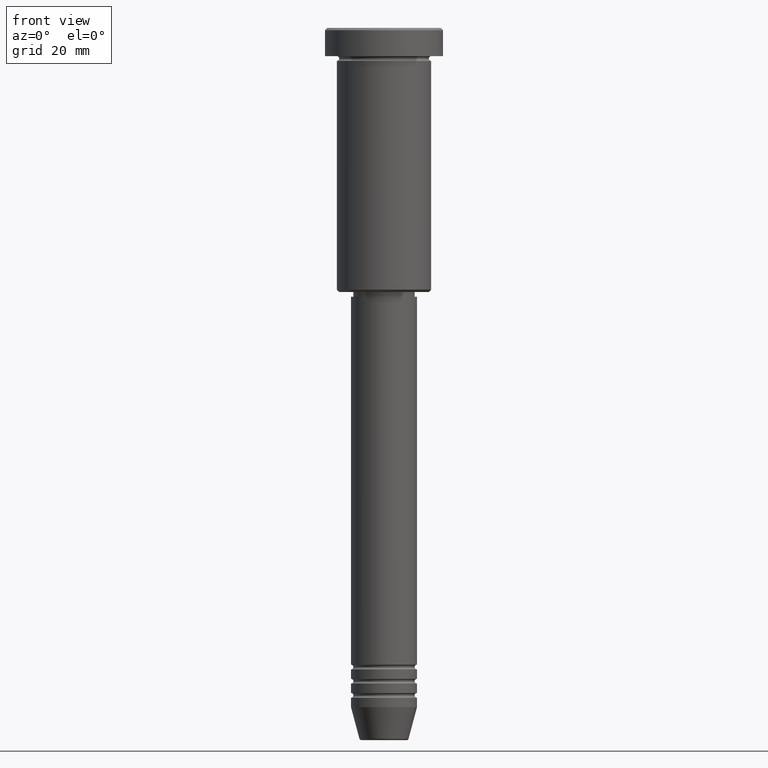
[diagram: clean part render]
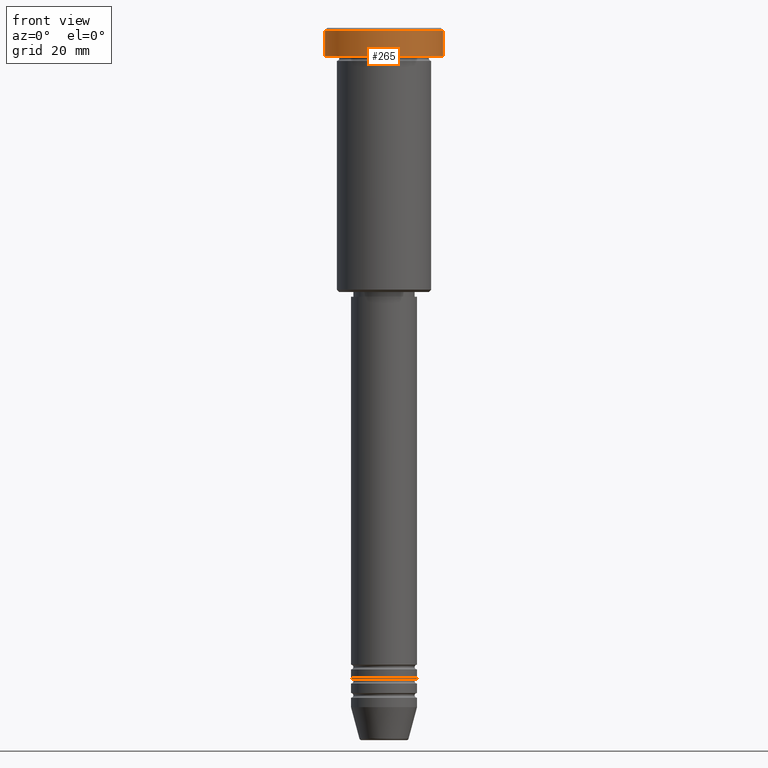
[diagram: same view with one face highlighted and labeled with its STEP entity id]
A machine part, front view. The second image highlights one B-rep face of the part: STEP entity #265.
In plain terms, the highlighted cylindrical surface (partial cylindrical patch) has radius 12.5 mm, axis along (-0, -0, 1).
Its self-contained STEP definition (entity closure, byte-faithful):
#18 = VERTEX_POINT ( 'NONE', #773 ) ;
#21 = ORIENTED_EDGE ( 'NONE', *, *, #83, .T. ) ;
#24 = EDGE_CURVE ( 'NONE', #554, #18, #480, .T. ) ;
#55 = DIRECTION ( 'NONE',  ( 0.000000000000000000, 0.000000000000000000, -1.000000000000000000 ) ) ;
#83 = EDGE_CURVE ( 'NONE', #693, #544, #987, .T. ) ;
#126 = EDGE_CURVE ( 'NONE', #544, #554, #431, .T. ) ;
#137 = DIRECTION ( 'NONE',  ( 1.000000000000000000, 0.000000000000000000, 0.000000000000000000 ) ) ;
#179 = VECTOR ( 'NONE', #239, 1000.000000000000000 ) ;
#193 = FACE_OUTER_BOUND ( 'NONE', #874, .T. ) ;
#239 = DIRECTION ( 'NONE',  ( -0.000000000000000000, -0.000000000000000000, 1.000000000000000000 ) ) ;
#255 = CARTESIAN_POINT ( 'NONE',  ( -12.50000000000000000, 1.530808498934191521E-15, 0.000000000000000000 ) ) ;
#265 = ADVANCED_FACE ( 'NONE', ( #193 ), #900, .T. ) ;
#282 = DIRECTION ( 'NONE',  ( 1.000000000000000000, 0.000000000000000000, 0.000000000000000000 ) ) ;
#289 = DIRECTION ( 'NONE',  ( -0.000000000000000000, -0.000000000000000000, 1.000000000000000000 ) ) ;
#366 = CARTESIAN_POINT ( 'NONE',  ( 12.50000000000000000, 0.000000000000000000, -0.5000000000000056621 ) ) ;
#424 = ORIENTED_EDGE ( 'NONE', *, *, #24, .T. ) ;
#431 = LINE ( 'NONE', #966, #179 ) ;
#480 = CIRCLE ( 'NONE', #1024, 12.50000000000000000 ) ;
#491 = CARTESIAN_POINT ( 'NONE',  ( 0.000000000000000000, 0.000000000000000000, -0.5000000000000056621 ) ) ;
#500 = CARTESIAN_POINT ( 'NONE',  ( 12.50000000000000000, 0.000000000000000000, -5.999999999999996447 ) ) ;
#508 = DIRECTION ( 'NONE',  ( -0.000000000000000000, -0.000000000000000000, 1.000000000000000000 ) ) ;
#544 = VERTEX_POINT ( 'NONE', #500 ) ;
#554 = VERTEX_POINT ( 'NONE', #366 ) ;
#582 = DIRECTION ( 'NONE',  ( 1.000000000000000000, 0.000000000000000000, 0.000000000000000000 ) ) ;
#693 = VERTEX_POINT ( 'NONE', #1144 ) ;
#723 = AXIS2_PLACEMENT_3D ( 'NONE', #830, #289, #282 ) ;
#773 = CARTESIAN_POINT ( 'NONE',  ( -12.50000000000000000, 1.530808498934191521E-15, -0.5000000000000056621 ) ) ;
#815 = ORIENTED_EDGE ( 'NONE', *, *, #1085, .F. ) ;
#830 = CARTESIAN_POINT ( 'NONE',  ( 0.000000000000000000, 0.000000000000000000, 0.000000000000000000 ) ) ;
#874 = EDGE_LOOP ( 'NONE', ( #815, #21, #1076, #424 ) ) ;
#887 = DIRECTION ( 'NONE',  ( -0.000000000000000000, -0.000000000000000000, 1.000000000000000000 ) ) ;
#900 = CYLINDRICAL_SURFACE ( 'NONE', #723, 12.50000000000000000 ) ;
#966 = CARTESIAN_POINT ( 'NONE',  ( 12.50000000000000000, 0.000000000000000000, 0.000000000000000000 ) ) ;
#982 = LINE ( 'NONE', #255, #993 ) ;
#987 = CIRCLE ( 'NONE', #1105, 12.50000000000000000 ) ;
#993 = VECTOR ( 'NONE', #887, 1000.000000000000000 ) ;
#1024 = AXIS2_PLACEMENT_3D ( 'NONE', #491, #55, #582 ) ;
#1043 = CARTESIAN_POINT ( 'NONE',  ( 0.000000000000000000, 0.000000000000000000, -5.999999999999996447 ) ) ;
#1076 = ORIENTED_EDGE ( 'NONE', *, *, #126, .T. ) ;
#1085 = EDGE_CURVE ( 'NONE', #693, #18, #982, .T. ) ;
#1105 = AXIS2_PLACEMENT_3D ( 'NONE', #1043, #508, #137 ) ;
#1144 = CARTESIAN_POINT ( 'NONE',  ( -12.50000000000000000, 1.530808498934191521E-15, -5.999999999999996447 ) ) ;